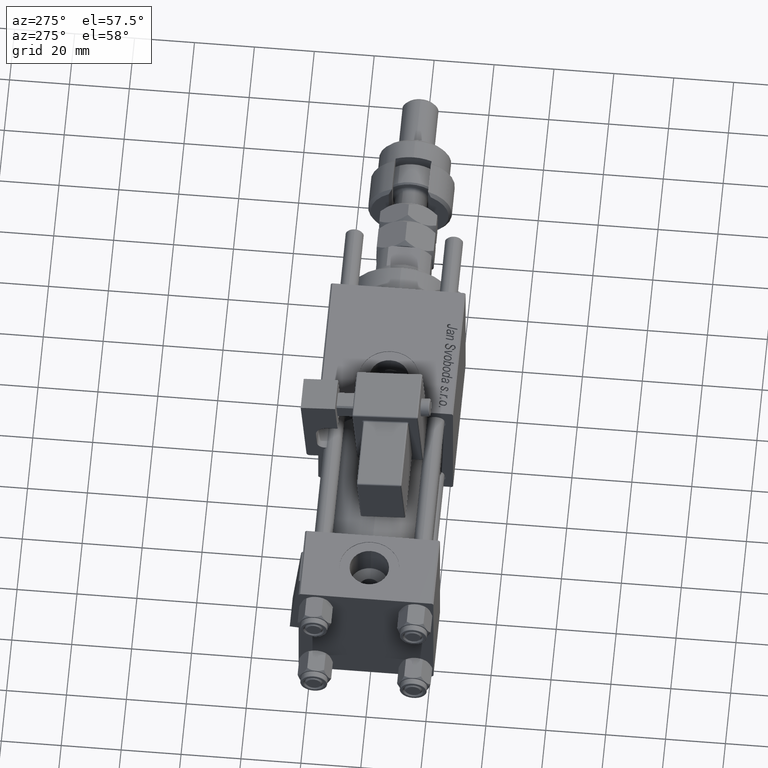
[diagram: clean part render]
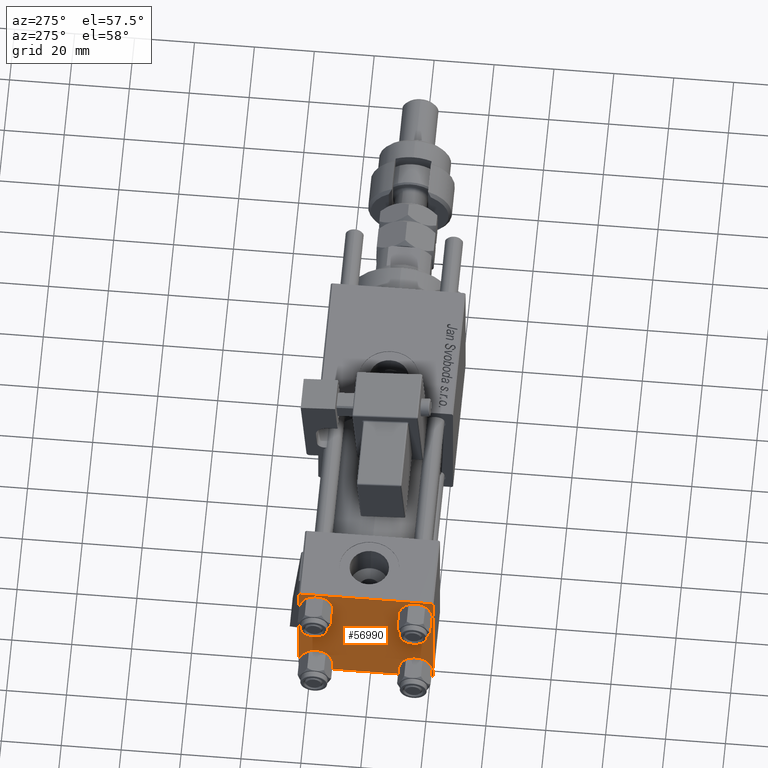
[diagram: same view with one face highlighted and labeled with its STEP entity id]
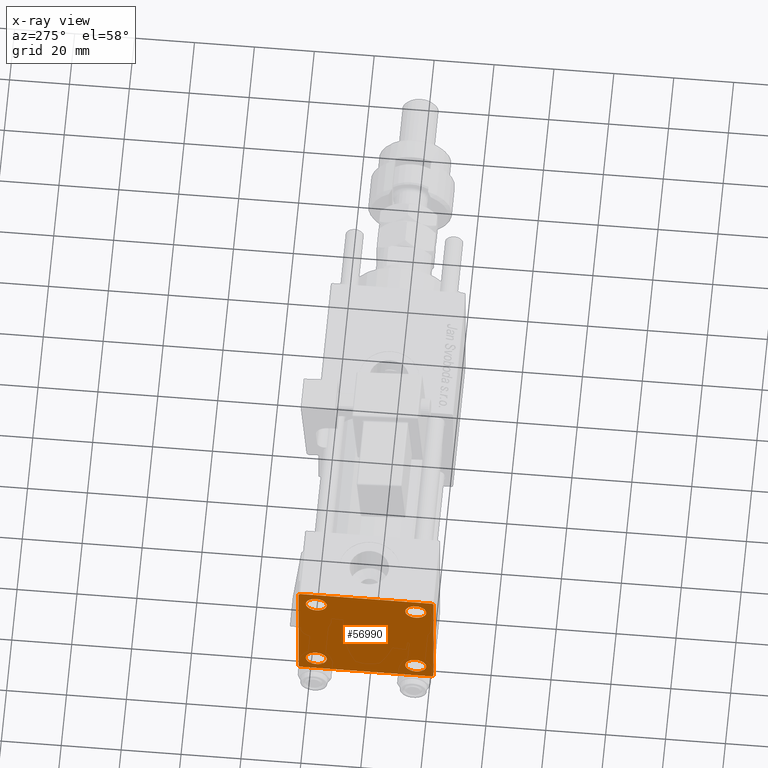
[diagram: x-ray of the same camera — body ghosted, the highlighted face saturated]
A machine part, auxiliary view. The second image highlights one B-rep face of the part: STEP entity #56990.
The next image is the same camera in x-ray: the body ghosted, the highlighted face saturated — about 0% of this face is hidden behind the body in this view.
In plain terms, the highlighted planar face has unit normal (-1, 0, 0).
Its self-contained STEP definition (entity closure, byte-faithful):
#333 = VECTOR ( 'NONE', #60770, 1000.000000000000000 ) ;
#339 = LINE ( 'NONE', #16145, #333 ) ;
#397 = DIRECTION ( 'NONE',  ( 1.000000000000000000, -0.000000000000000000, 0.000000000000000000 ) ) ;
#649 = ORIENTED_EDGE ( 'NONE', *, *, #36634, .T. ) ;
#1764 = DIRECTION ( 'NONE',  ( 0.000000000000000000, 0.000000000000000000, 1.000000000000000000 ) ) ;
#1779 = ORIENTED_EDGE ( 'NONE', *, *, #23206, .T. ) ;
#2101 = CIRCLE ( 'NONE', #46475, 3.499999999999996003 ) ;
#3322 = ORIENTED_EDGE ( 'NONE', *, *, #61428, .T. ) ;
#3645 = EDGE_CURVE ( 'NONE', #18319, #7852, #35759, .T. ) ;
#3939 = CARTESIAN_POINT ( 'NONE',  ( 0.000000000000000000, 22.50000000000000000, 21.99999999999999645 ) ) ;
#4179 = CIRCLE ( 'NONE', #54766, 3.499999999999996003 ) ;
#4212 = VERTEX_POINT ( 'NONE', #9974 ) ;
#4465 = FACE_BOUND ( 'NONE', #62005, .T. ) ;
#6068 = CARTESIAN_POINT ( 'NONE',  ( 0.000000000000000000, -16.59999999999999076, -20.10000000000000497 ) ) ;
#6467 = LINE ( 'NONE', #11625, #37097 ) ;
#6844 = LINE ( 'NONE', #16854, #53146 ) ;
#7016 = DIRECTION ( 'NONE',  ( -1.000000000000000000, 0.000000000000000000, -0.000000000000000000 ) ) ;
#7588 = CARTESIAN_POINT ( 'NONE',  ( 0.000000000000000000, 16.59999999999999787, 16.60000000000000497 ) ) ;
#7852 = VERTEX_POINT ( 'NONE', #15718 ) ;
#7968 = EDGE_CURVE ( 'NONE', #7852, #18319, #49190, .T. ) ;
#8079 = CARTESIAN_POINT ( 'NONE',  ( 0.000000000000000000, 16.59999999999999787, -13.10000000000000675 ) ) ;
#8798 = ORIENTED_EDGE ( 'NONE', *, *, #29107, .T. ) ;
#8852 = VERTEX_POINT ( 'NONE', #25339 ) ;
#9974 = CARTESIAN_POINT ( 'NONE',  ( 0.000000000000000000, -16.59999999999999076, -13.10000000000001030 ) ) ;
#10717 = DIRECTION ( 'NONE',  ( 0.000000000000000000, 0.000000000000000000, 1.000000000000000000 ) ) ;
#10731 = CARTESIAN_POINT ( 'NONE',  ( 0.000000000000000000, -22.50000000000000000, 22.50000000000000000 ) ) ;
#11625 = CARTESIAN_POINT ( 'NONE',  ( 0.000000000000000000, 22.50000000000000000, 22.50000000000000355 ) ) ;
#11682 = DIRECTION ( 'NONE',  ( -0.000000000000000000, -0.7071067811865426878, -0.7071067811865524577 ) ) ;
#11825 = DIRECTION ( 'NONE',  ( -0.000000000000000000, 0.7071067811865525687, 0.7071067811865425767 ) ) ;
#11845 = FACE_BOUND ( 'NONE', #63647, .T. ) ;
#12162 = DIRECTION ( 'NONE',  ( 1.000000000000000000, -0.000000000000000000, 0.000000000000000000 ) ) ;
#13255 = EDGE_CURVE ( 'NONE', #14603, #36852, #52251, .T. ) ;
#14042 = DIRECTION ( 'NONE',  ( 1.000000000000000000, -0.000000000000000000, 0.000000000000000000 ) ) ;
#14492 = ORIENTED_EDGE ( 'NONE', *, *, #35009, .T. ) ;
#14603 = VERTEX_POINT ( 'NONE', #3939 ) ;
#15447 = LINE ( 'NONE', #19352, #63925 ) ;
#15491 = ORIENTED_EDGE ( 'NONE', *, *, #26968, .T. ) ;
#15718 = CARTESIAN_POINT ( 'NONE',  ( 0.000000000000000000, 16.59999999999999787, -20.10000000000000142 ) ) ;
#16145 = CARTESIAN_POINT ( 'NONE',  ( 0.000000000000000000, 22.50000000000000000, -22.49999999999999645 ) ) ;
#16372 = PLANE ( 'NONE',  #32913 ) ;
#16582 = VERTEX_POINT ( 'NONE', #32230 ) ;
#16805 = ORIENTED_EDGE ( 'NONE', *, *, #38770, .F. ) ;
#16854 = CARTESIAN_POINT ( 'NONE',  ( 0.000000000000000000, 22.25000000000014566, -22.24999999999984013 ) ) ;
#17261 = CARTESIAN_POINT ( 'NONE',  ( 0.000000000000000000, 22.24999999999999645, 22.24999999999999645 ) ) ;
#18211 = EDGE_CURVE ( 'NONE', #41698, #16582, #339, .T. ) ;
#18311 = VECTOR ( 'NONE', #36976, 1000.000000000000114 ) ;
#18319 = VERTEX_POINT ( 'NONE', #8079 ) ;
#19352 = CARTESIAN_POINT ( 'NONE',  ( 0.000000000000000000, -22.25000000000014566, -22.24999999999984013 ) ) ;
#19728 = DIRECTION ( 'NONE',  ( 1.000000000000000000, -0.000000000000000000, 0.000000000000000000 ) ) ;
#20724 = CARTESIAN_POINT ( 'NONE',  ( 0.000000000000000000, 21.99999999999999289, -22.49999999999999645 ) ) ;
#21556 = CARTESIAN_POINT ( 'NONE',  ( 0.000000000000000000, 0.000000000000000000, 0.000000000000000000 ) ) ;
#21611 = VERTEX_POINT ( 'NONE', #52283 ) ;
#22258 = CIRCLE ( 'NONE', #35656, 3.499999999999996003 ) ;
#22820 = CARTESIAN_POINT ( 'NONE',  ( 0.000000000000000000, -16.59999999999999076, -16.60000000000000853 ) ) ;
#22876 = ORIENTED_EDGE ( 'NONE', *, *, #18211, .T. ) ;
#23020 = CARTESIAN_POINT ( 'NONE',  ( 0.000000000000000000, 16.59999999999999787, -16.60000000000000497 ) ) ;
#23206 = EDGE_CURVE ( 'NONE', #36852, #41698, #6844, .T. ) ;
#23532 = AXIS2_PLACEMENT_3D ( 'NONE', #7588, #27283, #42460 ) ;
#23847 = VERTEX_POINT ( 'NONE', #60280 ) ;
#24332 = EDGE_CURVE ( 'NONE', #59001, #26419, #22258, .T. ) ;
#25339 = CARTESIAN_POINT ( 'NONE',  ( 0.000000000000000000, -16.59999999999999076, 20.10000000000000853 ) ) ;
#25416 = FACE_BOUND ( 'NONE', #57274, .T. ) ;
#25681 = DIRECTION ( 'NONE',  ( 1.000000000000000000, -0.000000000000000000, 0.000000000000000000 ) ) ;
#26419 = VERTEX_POINT ( 'NONE', #46009 ) ;
#26442 = AXIS2_PLACEMENT_3D ( 'NONE', #59858, #397, #10717 ) ;
#26624 = CIRCLE ( 'NONE', #23532, 3.499999999999996003 ) ;
#26968 = EDGE_CURVE ( 'NONE', #40095, #8852, #43041, .T. ) ;
#27283 = DIRECTION ( 'NONE',  ( 1.000000000000000000, -0.000000000000000000, 0.000000000000000000 ) ) ;
#27457 = CARTESIAN_POINT ( 'NONE',  ( 0.000000000000000000, 16.59999999999999787, 16.60000000000000497 ) ) ;
#27765 = EDGE_LOOP ( 'NONE', ( #46517, #1779, #22876, #649, #32626, #41297, #16805, #8798 ) ) ;
#28824 = EDGE_LOOP ( 'NONE', ( #3322, #31627 ) ) ;
#29107 = EDGE_CURVE ( 'NONE', #32778, #14603, #61552, .T. ) ;
#29741 = DIRECTION ( 'NONE',  ( 0.000000000000000000, 0.000000000000000000, 1.000000000000000000 ) ) ;
#30084 = EDGE_CURVE ( 'NONE', #54180, #21611, #34979, .T. ) ;
#30682 = VECTOR ( 'NONE', #11825, 999.9999999999998863 ) ;
#31627 = ORIENTED_EDGE ( 'NONE', *, *, #59798, .T. ) ;
#31860 = CARTESIAN_POINT ( 'NONE',  ( -0.000000000000000000, -22.24999999999984013, 22.25000000000015277 ) ) ;
#32230 = CARTESIAN_POINT ( 'NONE',  ( 0.000000000000000000, -21.99999999999997158, -22.50000000000000711 ) ) ;
#32626 = ORIENTED_EDGE ( 'NONE', *, *, #30084, .F. ) ;
#32778 = VERTEX_POINT ( 'NONE', #56039 ) ;
#32913 = AXIS2_PLACEMENT_3D ( 'NONE', #21556, #7016, #50305 ) ;
#32938 = DIRECTION ( 'NONE',  ( 1.000000000000000000, -0.000000000000000000, 0.000000000000000000 ) ) ;
#33017 = DIRECTION ( 'NONE',  ( 0.000000000000000000, 0.000000000000000000, 1.000000000000000000 ) ) ;
#33220 = CARTESIAN_POINT ( 'NONE',  ( 0.000000000000000000, 22.50000000000000000, -21.99999999999996803 ) ) ;
#34384 = DIRECTION ( 'NONE',  ( 0.000000000000000000, 0.000000000000000000, 1.000000000000000000 ) ) ;
#34979 = LINE ( 'NONE', #10731, #60543 ) ;
#35009 = EDGE_CURVE ( 'NONE', #26419, #59001, #26624, .T. ) ;
#35656 = AXIS2_PLACEMENT_3D ( 'NONE', #27457, #32938, #52661 ) ;
#35759 = CIRCLE ( 'NONE', #41951, 3.499999999999996003 ) ;
#36124 = ORIENTED_EDGE ( 'NONE', *, *, #3645, .T. ) ;
#36634 = EDGE_CURVE ( 'NONE', #16582, #21611, #15447, .T. ) ;
#36852 = VERTEX_POINT ( 'NONE', #33220 ) ;
#36976 = DIRECTION ( 'NONE',  ( 0.000000000000000000, 0.7071067811865474617, -0.7071067811865474617 ) ) ;
#37097 = VECTOR ( 'NONE', #37155, 1000.000000000000000 ) ;
#37155 = DIRECTION ( 'NONE',  ( 0.000000000000000000, -1.000000000000000000, -7.709882115452476934E-17 ) ) ;
#37315 = ORIENTED_EDGE ( 'NONE', *, *, #24332, .T. ) ;
#37654 = DIRECTION ( 'NONE',  ( 0.000000000000000000, 0.000000000000000000, 1.000000000000000000 ) ) ;
#38127 = EDGE_CURVE ( 'NONE', #8852, #40095, #63962, .T. ) ;
#38770 = EDGE_CURVE ( 'NONE', #32778, #23847, #6467, .T. ) ;
#40095 = VERTEX_POINT ( 'NONE', #54007 ) ;
#40293 = FACE_BOUND ( 'NONE', #28824, .T. ) ;
#40335 = ORIENTED_EDGE ( 'NONE', *, *, #7968, .T. ) ;
#41235 = LINE ( 'NONE', #31860, #30682 ) ;
#41297 = ORIENTED_EDGE ( 'NONE', *, *, #49435, .T. ) ;
#41457 = ORIENTED_EDGE ( 'NONE', *, *, #38127, .T. ) ;
#41698 = VERTEX_POINT ( 'NONE', #20724 ) ;
#41951 = AXIS2_PLACEMENT_3D ( 'NONE', #23020, #52108, #33017 ) ;
#42460 = DIRECTION ( 'NONE',  ( 0.000000000000000000, 0.000000000000000000, 1.000000000000000000 ) ) ;
#43041 = CIRCLE ( 'NONE', #47157, 3.499999999999996003 ) ;
#46009 = CARTESIAN_POINT ( 'NONE',  ( 0.000000000000000000, 16.59999999999999787, 20.10000000000000142 ) ) ;
#46018 = CARTESIAN_POINT ( 'NONE',  ( 0.000000000000000000, -16.59999999999999076, 16.60000000000000853 ) ) ;
#46475 = AXIS2_PLACEMENT_3D ( 'NONE', #22820, #12162, #37654 ) ;
#46517 = ORIENTED_EDGE ( 'NONE', *, *, #13255, .T. ) ;
#47157 = AXIS2_PLACEMENT_3D ( 'NONE', #59462, #19728, #29741 ) ;
#48018 = DIRECTION ( 'NONE',  ( 0.000000000000000000, 0.000000000000000000, -1.000000000000000000 ) ) ;
#49190 = CIRCLE ( 'NONE', #26442, 3.499999999999996003 ) ;
#49435 = EDGE_CURVE ( 'NONE', #54180, #23847, #41235, .T. ) ;
#49848 = DIRECTION ( 'NONE',  ( 0.000000000000000000, 0.000000000000000000, -1.000000000000000000 ) ) ;
#50305 = DIRECTION ( 'NONE',  ( -0.000000000000000000, 0.000000000000000000, 1.000000000000000000 ) ) ;
#51543 = AXIS2_PLACEMENT_3D ( 'NONE', #46018, #25681, #1764 ) ;
#52108 = DIRECTION ( 'NONE',  ( 1.000000000000000000, -0.000000000000000000, 0.000000000000000000 ) ) ;
#52251 = LINE ( 'NONE', #53189, #54997 ) ;
#52283 = CARTESIAN_POINT ( 'NONE',  ( 0.000000000000000000, -22.50000000000000000, -21.99999999999997158 ) ) ;
#52661 = DIRECTION ( 'NONE',  ( 0.000000000000000000, 0.000000000000000000, 1.000000000000000000 ) ) ;
#52754 = CARTESIAN_POINT ( 'NONE',  ( 0.000000000000000000, 16.59999999999999787, 13.10000000000000675 ) ) ;
#53146 = VECTOR ( 'NONE', #11682, 1000.000000000000000 ) ;
#53189 = CARTESIAN_POINT ( 'NONE',  ( 0.000000000000000000, 22.50000000000000000, 22.50000000000000355 ) ) ;
#54007 = CARTESIAN_POINT ( 'NONE',  ( 0.000000000000000000, -16.59999999999999076, 13.10000000000001030 ) ) ;
#54106 = CARTESIAN_POINT ( 'NONE',  ( 0.000000000000000000, -16.59999999999999076, -16.60000000000000853 ) ) ;
#54180 = VERTEX_POINT ( 'NONE', #60043 ) ;
#54186 = VERTEX_POINT ( 'NONE', #6068 ) ;
#54766 = AXIS2_PLACEMENT_3D ( 'NONE', #54106, #14042, #34384 ) ;
#54997 = VECTOR ( 'NONE', #48018, 1000.000000000000000 ) ;
#56039 = CARTESIAN_POINT ( 'NONE',  ( 0.000000000000000000, 21.99999999999999289, 22.50000000000000355 ) ) ;
#56990 = ADVANCED_FACE ( 'NONE', ( #25416, #40293, #4465, #11845, #60667 ), #16372, .T. ) ;
#57274 = EDGE_LOOP ( 'NONE', ( #41457, #15491 ) ) ;
#59001 = VERTEX_POINT ( 'NONE', #52754 ) ;
#59462 = CARTESIAN_POINT ( 'NONE',  ( 0.000000000000000000, -16.59999999999999076, 16.60000000000000853 ) ) ;
#59798 = EDGE_CURVE ( 'NONE', #54186, #4212, #2101, .T. ) ;
#59858 = CARTESIAN_POINT ( 'NONE',  ( 0.000000000000000000, 16.59999999999999787, -16.60000000000000497 ) ) ;
#60043 = CARTESIAN_POINT ( 'NONE',  ( 0.000000000000000000, -22.50000000000000000, 22.00000000000000000 ) ) ;
#60280 = CARTESIAN_POINT ( 'NONE',  ( 0.000000000000000000, -21.99999999999997868, 22.50000000000000000 ) ) ;
#60543 = VECTOR ( 'NONE', #49848, 1000.000000000000000 ) ;
#60667 = FACE_OUTER_BOUND ( 'NONE', #27765, .T. ) ;
#60770 = DIRECTION ( 'NONE',  ( 0.000000000000000000, -1.000000000000000000, -2.312964634635742957E-16 ) ) ;
#61428 = EDGE_CURVE ( 'NONE', #4212, #54186, #4179, .T. ) ;
#61552 = LINE ( 'NONE', #17261, #18311 ) ;
#62005 = EDGE_LOOP ( 'NONE', ( #36124, #40335 ) ) ;
#63638 = DIRECTION ( 'NONE',  ( 0.000000000000000000, -0.7071067811865426878, 0.7071067811865524577 ) ) ;
#63647 = EDGE_LOOP ( 'NONE', ( #14492, #37315 ) ) ;
#63925 = VECTOR ( 'NONE', #63638, 1000.000000000000000 ) ;
#63962 = CIRCLE ( 'NONE', #51543, 3.499999999999996003 ) ;